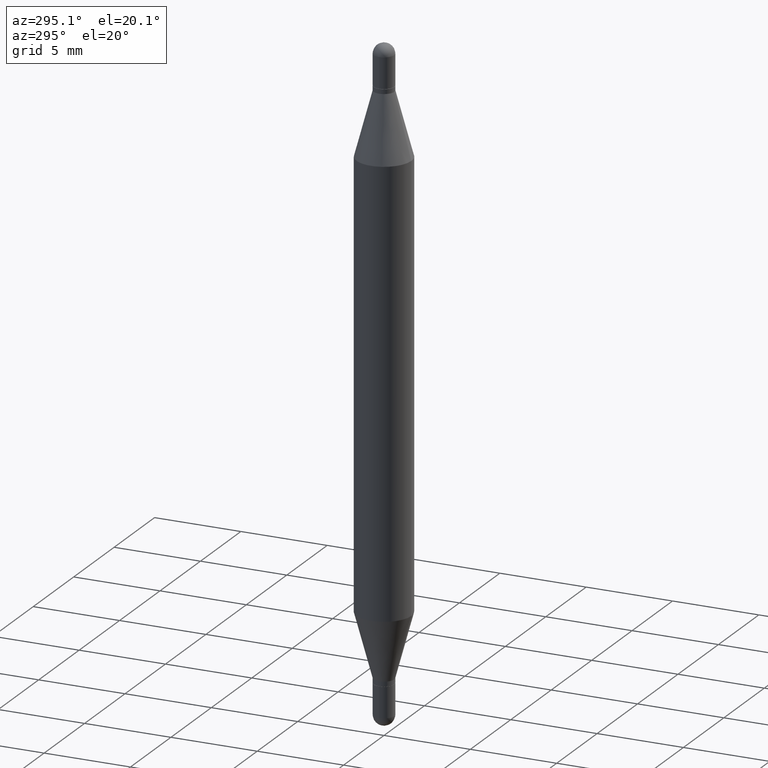
[diagram: clean part render]
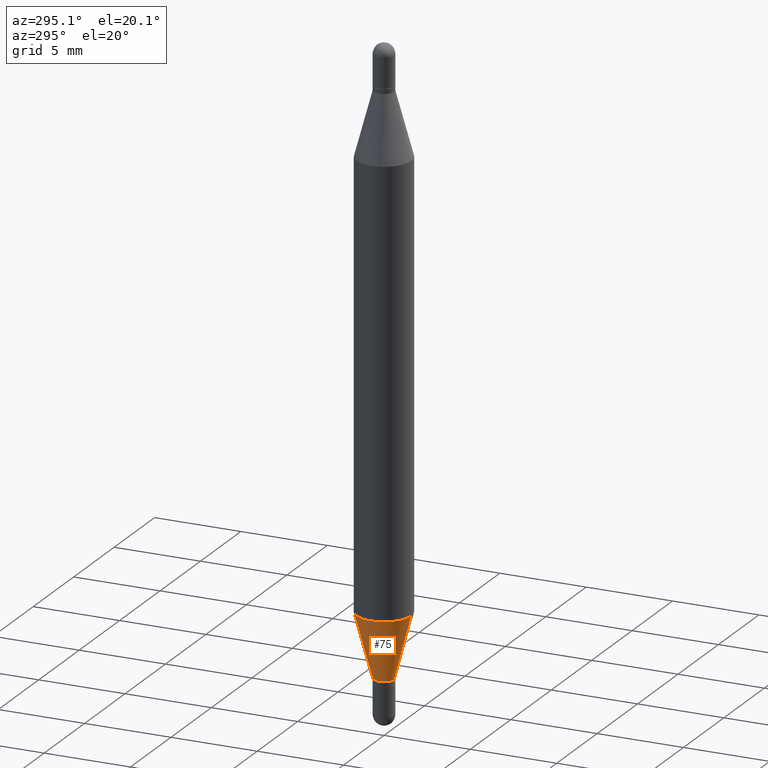
[diagram: same view with one face highlighted and labeled with its STEP entity id]
A machine part, auxiliary view. The second image highlights one B-rep face of the part: STEP entity #75.
In plain terms, the highlighted conical surface has half-angle 15 deg.
Its self-contained STEP definition (entity closure, byte-faithful):
#9 = CIRCLE ( 'NONE', #709, 0.02344999999999965168 ) ;
#40 = ORIENTED_EDGE ( 'NONE', *, *, #166, .F. ) ;
#48 = DIRECTION ( 'NONE',  ( -2.445459728280500552E-29, 3.491494338919266742E-15, 1.000000000000000000 ) ) ;
#75 = ADVANCED_FACE ( 'NONE', ( #434 ), #1076, .T. ) ;
#84 = CARTESIAN_POINT ( 'NONE',  ( 3.413861780679579577E-29, -4.874126097131297156E-15, -1.396000000000000352 ) ) ;
#85 = EDGE_LOOP ( 'NONE', ( #40, #573, #759, #253 ) ) ;
#106 = CARTESIAN_POINT ( 'NONE',  ( -4.364351673553610517E-16, -0.06250000000000435763, -1.250263415964434799 ) ) ;
#110 = AXIS2_PLACEMENT_3D ( 'NONE', #84, #944, #1118 ) ;
#115 = CARTESIAN_POINT ( 'NONE',  ( 3.057468833483437762E-29, -4.365287638997689123E-15, -1.250263415964435021 ) ) ;
#134 = VERTEX_POINT ( 'NONE', #345 ) ;
#166 = EDGE_CURVE ( 'NONE', #960, #471, #766, .T. ) ;
#253 = ORIENTED_EDGE ( 'NONE', *, *, #1106, .F. ) ;
#343 = VECTOR ( 'NONE', #593, 39.37007874015748143 ) ;
#345 = CARTESIAN_POINT ( 'NONE',  ( -1.637504747917063431E-16, -0.02345000000000452625, -1.396000000000000352 ) ) ;
#358 = DIRECTION ( 'NONE',  ( -6.982962677686265922E-15, -1.000000000000000000, 4.370956789862821150E-15 ) ) ;
#392 = EDGE_CURVE ( 'NONE', #960, #134, #9, .T. ) ;
#417 = EDGE_CURVE ( 'NONE', #134, #681, #998, .T. ) ;
#434 = FACE_OUTER_BOUND ( 'NONE', #85, .T. ) ;
#471 = VERTEX_POINT ( 'NONE', #581 ) ;
#573 = ORIENTED_EDGE ( 'NONE', *, *, #392, .T. ) ;
#581 = CARTESIAN_POINT ( 'NONE',  ( 4.287811248607390637E-16, 0.06249999999999563544, -1.250263415964435243 ) ) ;
#593 = DIRECTION ( 'NONE',  ( 1.839019923739602287E-15, 0.2588190451025252359, 0.9659258262890670910 ) ) ;
#663 = DIRECTION ( 'NONE',  ( -1.807323732225332111E-15, -0.2588190451025184635, 0.9659258262890689783 ) ) ;
#681 = VERTEX_POINT ( 'NONE', #106 ) ;
#709 = AXIS2_PLACEMENT_3D ( 'NONE', #752, #48, #899 ) ;
#745 = VECTOR ( 'NONE', #663, 39.37007874015748854 ) ;
#752 = CARTESIAN_POINT ( 'NONE',  ( 3.413861780679579577E-29, -4.874126097131297156E-15, -1.396000000000000352 ) ) ;
#759 = ORIENTED_EDGE ( 'NONE', *, *, #417, .T. ) ;
#766 = LINE ( 'NONE', #1029, #343 ) ;
#801 = DIRECTION ( 'NONE',  ( -2.445459728280500552E-29, 3.491494338919266742E-15, 1.000000000000000000 ) ) ;
#813 = CIRCLE ( 'NONE', #1108, 0.06250000000000000000 ) ;
#899 = DIRECTION ( 'NONE',  ( -6.982962677686265133E-15, -1.000000000000000000, 0.000000000000000000 ) ) ;
#944 = DIRECTION ( 'NONE',  ( -2.445459728280500552E-29, 3.491494338919266742E-15, 1.000000000000000000 ) ) ;
#960 = VERTEX_POINT ( 'NONE', #1035 ) ;
#998 = LINE ( 'NONE', #1089, #745 ) ;
#1029 = CARTESIAN_POINT ( 'NONE',  ( 1.666222715357751368E-16, 0.02344999999999477711, -1.396000000000000352 ) ) ;
#1035 = CARTESIAN_POINT ( 'NONE',  ( 1.666222715357763448E-16, 0.02344999999999477711, -1.396000000000000352 ) ) ;
#1076 = CONICAL_SURFACE ( 'NONE', #110, 0.02344999999999965168, 0.2617993877991505736 ) ;
#1089 = CARTESIAN_POINT ( 'NONE',  ( -1.637504747917063431E-16, -0.02345000000000452625, -1.396000000000000352 ) ) ;
#1106 = EDGE_CURVE ( 'NONE', #471, #681, #813, .T. ) ;
#1108 = AXIS2_PLACEMENT_3D ( 'NONE', #115, #801, #358 ) ;
#1118 = DIRECTION ( 'NONE',  ( -6.982962677686265133E-15, -1.000000000000000000, 0.000000000000000000 ) ) ;